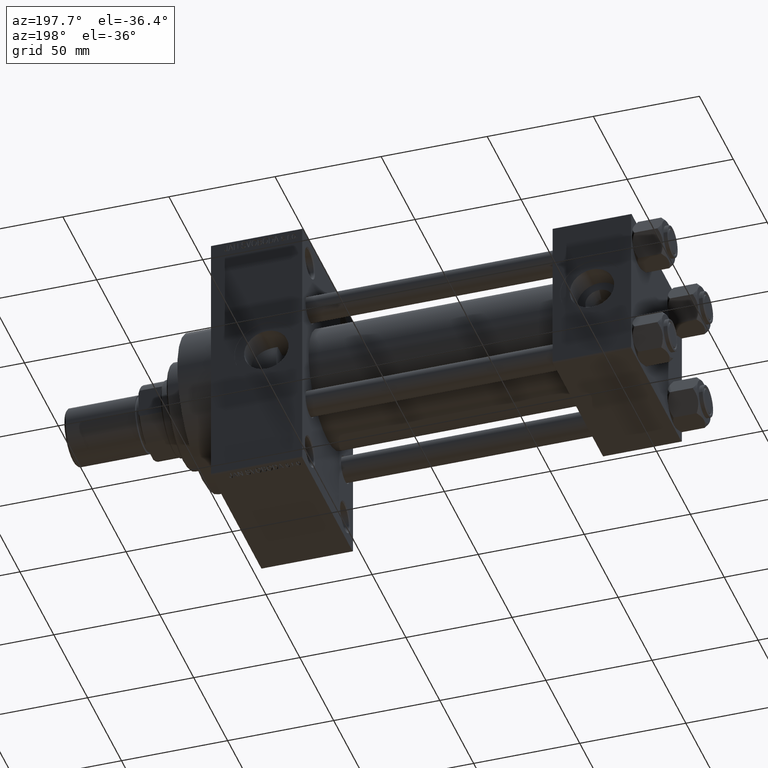
[diagram: clean part render]
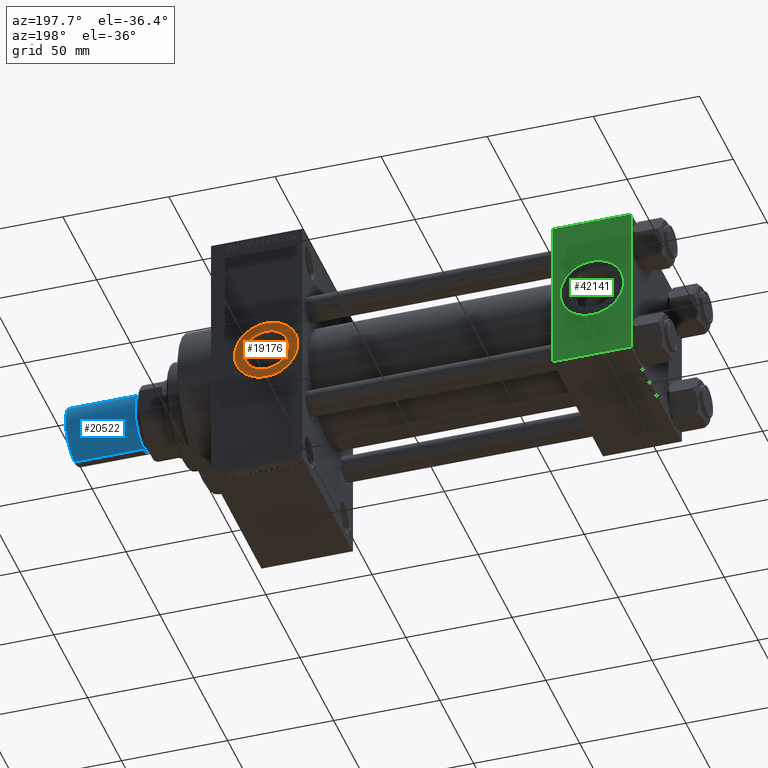
[diagram: same view with three faces highlighted in distinct colors, each labeled with its STEP entity id]
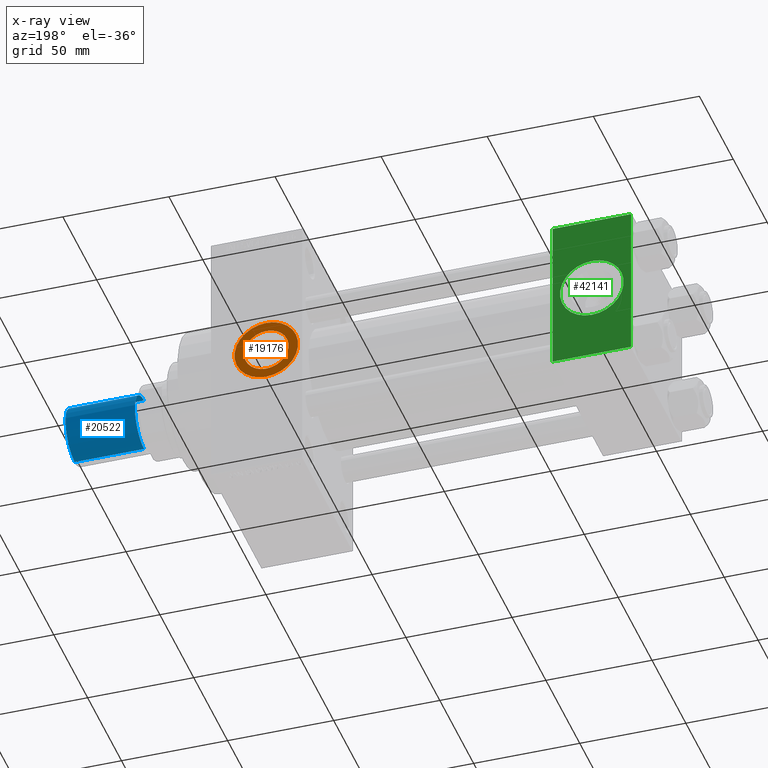
[diagram: x-ray of the same camera — body ghosted, the three highlighted faces saturated]
A machine part, auxiliary view with three faces highlighted in distinct colors.
The next image is the same camera in x-ray (body ghosted, the three faces saturated) — at least one of them is partly hidden behind the body in this view.
Their STEP definitions:

[orange] entity #19176 — the highlighted planar face has unit normal (0, 1, 0).
#1297 = ORIENTED_EDGE ( 'NONE', *, *, #29135, .F. ) ;
#2678 = ORIENTED_EDGE ( 'NONE', *, *, #4825, .T. ) ;
#4825 = EDGE_CURVE ( 'NONE', #10763, #16141, #16055, .T. ) ;
#8359 = CIRCLE ( 'NONE', #25208, 15.00000000000002487 ) ;
#10763 = VERTEX_POINT ( 'NONE', #29411 ) ;
#10847 = FACE_BOUND ( 'NONE', #24672, .T. ) ;
#11347 = PLANE ( 'NONE',  #32540 ) ;
#12062 = CIRCLE ( 'NONE', #40182, 10.47999999999998622 ) ;
#16055 = CIRCLE ( 'NONE', #44964, 15.00000000000002487 ) ;
#16141 = VERTEX_POINT ( 'NONE', #39707 ) ;
#16532 = CARTESIAN_POINT ( 'NONE',  ( 172.0000000000000000, 37.29999999999999005, -2.032879073410320814E-15 ) ) ;
#17409 = EDGE_CURVE ( 'NONE', #16141, #10763, #8359, .T. ) ;
#17528 = CARTESIAN_POINT ( 'NONE',  ( 172.0000000000000000, 37.29999999999999716, -2.032879073410320814E-15 ) ) ;
#18412 = DIRECTION ( 'NONE',  ( 0.000000000000000000, -0.000000000000000000, 1.000000000000000000 ) ) ;
#19176 = ADVANCED_FACE ( 'NONE', ( #10847, #22182 ), #11347, .T. ) ;
#19369 = DIRECTION ( 'NONE',  ( 0.000000000000000000, 1.000000000000000000, 0.000000000000000000 ) ) ;
#22027 = DIRECTION ( 'NONE',  ( 0.000000000000000000, 0.000000000000000000, 1.000000000000000000 ) ) ;
#22182 = FACE_OUTER_BOUND ( 'NONE', #25550, .T. ) ;
#23982 = VERTEX_POINT ( 'NONE', #49066 ) ;
#24578 = DIRECTION ( 'NONE',  ( 0.000000000000000000, 0.000000000000000000, 1.000000000000000000 ) ) ;
#24672 = EDGE_LOOP ( 'NONE', ( #33791, #1297 ) ) ;
#25208 = AXIS2_PLACEMENT_3D ( 'NONE', #17528, #29096, #22027 ) ;
#25550 = EDGE_LOOP ( 'NONE', ( #2678, #33739 ) ) ;
#29096 = DIRECTION ( 'NONE',  ( 0.000000000000000000, 1.000000000000000000, 0.000000000000000000 ) ) ;
#29135 = EDGE_CURVE ( 'NONE', #23982, #35501, #12062, .T. ) ;
#29411 = CARTESIAN_POINT ( 'NONE',  ( 172.0000000000000000, 37.29999999999999716, 15.00000000000002309 ) ) ;
#29493 = DIRECTION ( 'NONE',  ( 0.000000000000000000, 1.000000000000000000, 0.000000000000000000 ) ) ;
#30223 = CARTESIAN_POINT ( 'NONE',  ( 172.0000000000000000, 37.29999999999999716, -2.032879073410320814E-15 ) ) ;
#30896 = CIRCLE ( 'NONE', #36507, 10.47999999999998622 ) ;
#31559 = CARTESIAN_POINT ( 'NONE',  ( 172.0000000000000000, 37.29999999999999005, 10.47999999999998444 ) ) ;
#32540 = AXIS2_PLACEMENT_3D ( 'NONE', #30223, #29493, #18412 ) ;
#33739 = ORIENTED_EDGE ( 'NONE', *, *, #17409, .T. ) ;
#33791 = ORIENTED_EDGE ( 'NONE', *, *, #42560, .F. ) ;
#34533 = DIRECTION ( 'NONE',  ( 0.000000000000000000, 1.000000000000000000, 0.000000000000000000 ) ) ;
#35046 = DIRECTION ( 'NONE',  ( 0.000000000000000000, 0.000000000000000000, 1.000000000000000000 ) ) ;
#35458 = CARTESIAN_POINT ( 'NONE',  ( 172.0000000000000000, 37.29999999999999716, -2.032879073410320814E-15 ) ) ;
#35501 = VERTEX_POINT ( 'NONE', #31559 ) ;
#36507 = AXIS2_PLACEMENT_3D ( 'NONE', #46346, #34533, #35046 ) ;
#39226 = DIRECTION ( 'NONE',  ( 0.000000000000000000, 0.000000000000000000, 1.000000000000000000 ) ) ;
#39707 = CARTESIAN_POINT ( 'NONE',  ( 172.0000000000000000, 37.29999999999999716, -15.00000000000002665 ) ) ;
#40182 = AXIS2_PLACEMENT_3D ( 'NONE', #16532, #47700, #24578 ) ;
#42560 = EDGE_CURVE ( 'NONE', #35501, #23982, #30896, .T. ) ;
#44964 = AXIS2_PLACEMENT_3D ( 'NONE', #35458, #19369, #39226 ) ;
#46346 = CARTESIAN_POINT ( 'NONE',  ( 172.0000000000000000, 37.29999999999999005, -2.032879073410320814E-15 ) ) ;
#47700 = DIRECTION ( 'NONE',  ( 0.000000000000000000, 1.000000000000000000, 0.000000000000000000 ) ) ;
#49066 = CARTESIAN_POINT ( 'NONE',  ( 172.0000000000000000, 37.29999999999999005, -10.47999999999998799 ) ) ;

[blue] entity #20522 — the highlighted cylindrical surface (edge-blend (fillet) strip) has radius 13.5 mm, axis along (1, -0, -0).
#158 = EDGE_CURVE ( 'NONE', #36456, #22473, #22329, .T. ) ;
#1480 = DIRECTION ( 'NONE',  ( -0.000000000000000000, -0.000000000000000000, -1.000000000000000000 ) ) ;
#1986 = CARTESIAN_POINT ( 'NONE',  ( 13.50000000000000000, 1.653273178848926867E-15, 33.50000000000000000 ) ) ;
#2382 = ORIENTED_EDGE ( 'NONE', *, *, #27435, .T. ) ;
#3882 = CARTESIAN_POINT ( 'NONE',  ( -13.50000000000000000, 0.000000000000000000, 0.7999999999999951594 ) ) ;
#4117 = VERTEX_POINT ( 'NONE', #3882 ) ;
#5196 = CARTESIAN_POINT ( 'NONE',  ( 0.000000000000000000, 0.000000000000000000, 33.50000000000000000 ) ) ;
#6347 = CIRCLE ( 'NONE', #14390, 13.50000000000000000 ) ;
#7334 = VECTOR ( 'NONE', #47367, 1000.000000000000000 ) ;
#8386 = CARTESIAN_POINT ( 'NONE',  ( -13.50000000000000000, 0.000000000000000000, 33.50000000000000000 ) ) ;
#9031 = FACE_OUTER_BOUND ( 'NONE', #40920, .T. ) ;
#9059 = ORIENTED_EDGE ( 'NONE', *, *, #158, .T. ) ;
#9250 = EDGE_CURVE ( 'NONE', #36456, #15090, #31463, .T. ) ;
#11241 = DIRECTION ( 'NONE',  ( -0.000000000000000000, -0.000000000000000000, -1.000000000000000000 ) ) ;
#13552 = DIRECTION ( 'NONE',  ( -1.000000000000000000, 0.000000000000000000, 0.000000000000000000 ) ) ;
#14390 = AXIS2_PLACEMENT_3D ( 'NONE', #15544, #45710, #42707 ) ;
#15090 = VERTEX_POINT ( 'NONE', #47487 ) ;
#15544 = CARTESIAN_POINT ( 'NONE',  ( 0.000000000000000000, 0.000000000000000000, 0.7999999999999951594 ) ) ;
#15911 = VECTOR ( 'NONE', #11241, 1000.000000000000000 ) ;
#16213 = AXIS2_PLACEMENT_3D ( 'NONE', #5196, #45131, #33327 ) ;
#20522 = ADVANCED_FACE ( 'NONE', ( #9031 ), #29140, .T. ) ;
#22329 = LINE ( 'NONE', #37655, #15911 ) ;
#22473 = VERTEX_POINT ( 'NONE', #23030 ) ;
#23030 = CARTESIAN_POINT ( 'NONE',  ( 13.50000000000000000, 1.653273178848926867E-15, 0.7999999999999951594 ) ) ;
#24657 = AXIS2_PLACEMENT_3D ( 'NONE', #47510, #1480, #13552 ) ;
#27435 = EDGE_CURVE ( 'NONE', #22473, #4117, #6347, .T. ) ;
#29140 = CYLINDRICAL_SURFACE ( 'NONE', #24657, 13.50000000000000000 ) ;
#30561 = ORIENTED_EDGE ( 'NONE', *, *, #32113, .F. ) ;
#31463 = CIRCLE ( 'NONE', #16213, 13.50000000000000000 ) ;
#32113 = EDGE_CURVE ( 'NONE', #15090, #4117, #35304, .T. ) ;
#33327 = DIRECTION ( 'NONE',  ( 1.000000000000000000, 0.000000000000000000, 0.000000000000000000 ) ) ;
#35304 = LINE ( 'NONE', #8386, #7334 ) ;
#36456 = VERTEX_POINT ( 'NONE', #1986 ) ;
#37655 = CARTESIAN_POINT ( 'NONE',  ( 13.50000000000000000, 1.653273178848926867E-15, 33.50000000000000000 ) ) ;
#40920 = EDGE_LOOP ( 'NONE', ( #42508, #9059, #2382, #30561 ) ) ;
#42508 = ORIENTED_EDGE ( 'NONE', *, *, #9250, .F. ) ;
#42707 = DIRECTION ( 'NONE',  ( 1.000000000000000000, 0.000000000000000000, 0.000000000000000000 ) ) ;
#45131 = DIRECTION ( 'NONE',  ( 0.000000000000000000, 0.000000000000000000, 1.000000000000000000 ) ) ;
#45710 = DIRECTION ( 'NONE',  ( -0.000000000000000000, -0.000000000000000000, 1.000000000000000000 ) ) ;
#47367 = DIRECTION ( 'NONE',  ( -0.000000000000000000, -0.000000000000000000, -1.000000000000000000 ) ) ;
#47487 = CARTESIAN_POINT ( 'NONE',  ( -13.50000000000000000, 0.000000000000000000, 33.50000000000000000 ) ) ;
#47510 = CARTESIAN_POINT ( 'NONE',  ( 0.000000000000000000, 0.000000000000000000, 33.50000000000000000 ) ) ;

[green] entity #42141 — the highlighted planar face has unit normal (0, 1, 0).
#247 = CARTESIAN_POINT ( 'NONE',  ( 37.00000000000000000, 37.49999999999999289, -36.99999999999998579 ) ) ;
#773 = LINE ( 'NONE', #39256, #34080 ) ;
#1950 = LINE ( 'NONE', #13523, #36835 ) ;
#2245 = FACE_OUTER_BOUND ( 'NONE', #5562, .T. ) ;
#3243 = VERTEX_POINT ( 'NONE', #36082 ) ;
#3527 = LINE ( 'NONE', #247, #22528 ) ;
#4253 = CIRCLE ( 'NONE', #38792, 15.00000000000000178 ) ;
#4323 = EDGE_LOOP ( 'NONE', ( #48532, #42853 ) ) ;
#5447 = EDGE_CURVE ( 'NONE', #39073, #9009, #7344, .T. ) ;
#5562 = EDGE_LOOP ( 'NONE', ( #45786, #14552, #33365, #36044 ) ) ;
#5840 = DIRECTION ( 'NONE',  ( 0.000000000000000000, 1.000000000000000000, 0.000000000000000000 ) ) ;
#6499 = FACE_BOUND ( 'NONE', #4323, .T. ) ;
#6848 = EDGE_CURVE ( 'NONE', #9009, #3243, #3527, .T. ) ;
#6875 = VERTEX_POINT ( 'NONE', #15091 ) ;
#7344 = LINE ( 'NONE', #18435, #27355 ) ;
#9009 = VERTEX_POINT ( 'NONE', #40450 ) ;
#10603 = VERTEX_POINT ( 'NONE', #27698 ) ;
#13089 = CARTESIAN_POINT ( 'NONE',  ( 37.00000000000000000, 37.49999999999999289, 37.50000000000000000 ) ) ;
#13516 = CARTESIAN_POINT ( 'NONE',  ( 37.00000000000000000, 37.49999999999999289, 37.00000000000000000 ) ) ;
#13523 = CARTESIAN_POINT ( 'NONE',  ( 0.000000000000000000, 37.49999999999999289, 37.50000000000000000 ) ) ;
#13578 = DIRECTION ( 'NONE',  ( -0.000000000000000000, 1.000000000000000000, 0.000000000000000000 ) ) ;
#13679 = EDGE_CURVE ( 'NONE', #35045, #6875, #47607, .T. ) ;
#14063 = DIRECTION ( 'NONE',  ( 0.000000000000000000, -0.000000000000000000, 1.000000000000000000 ) ) ;
#14552 = ORIENTED_EDGE ( 'NONE', *, *, #6848, .T. ) ;
#15091 = CARTESIAN_POINT ( 'NONE',  ( 18.50000000000000000, 37.49999999999999289, 15.00000000000000178 ) ) ;
#15250 = EDGE_CURVE ( 'NONE', #6875, #35045, #4253, .T. ) ;
#16675 = DIRECTION ( 'NONE',  ( 0.000000000000000000, 0.000000000000000000, 1.000000000000000000 ) ) ;
#16871 = DIRECTION ( 'NONE',  ( 1.000000000000000000, 0.000000000000000000, 0.000000000000000000 ) ) ;
#18435 = CARTESIAN_POINT ( 'NONE',  ( 37.00000000000000000, 37.49999999999999289, 37.50000000000000000 ) ) ;
#18878 = DIRECTION ( 'NONE',  ( -1.000000000000000000, 0.000000000000000000, 0.000000000000000000 ) ) ;
#19269 = CARTESIAN_POINT ( 'NONE',  ( 18.50000000000000000, 37.49999999999999289, 0.000000000000000000 ) ) ;
#21888 = AXIS2_PLACEMENT_3D ( 'NONE', #44317, #5840, #16675 ) ;
#22401 = EDGE_CURVE ( 'NONE', #10603, #3243, #1950, .T. ) ;
#22528 = VECTOR ( 'NONE', #18878, 1000.000000000000000 ) ;
#27355 = VECTOR ( 'NONE', #38277, 1000.000000000000000 ) ;
#27698 = CARTESIAN_POINT ( 'NONE',  ( 0.000000000000000000, 37.49999999999999289, 37.00000000000000000 ) ) ;
#30033 = AXIS2_PLACEMENT_3D ( 'NONE', #13089, #13578, #14063 ) ;
#33365 = ORIENTED_EDGE ( 'NONE', *, *, #22401, .F. ) ;
#34080 = VECTOR ( 'NONE', #16871, 1000.000000000000000 ) ;
#34348 = DIRECTION ( 'NONE',  ( 0.000000000000000000, 0.000000000000000000, 1.000000000000000000 ) ) ;
#35045 = VERTEX_POINT ( 'NONE', #43732 ) ;
#36044 = ORIENTED_EDGE ( 'NONE', *, *, #42988, .T. ) ;
#36082 = CARTESIAN_POINT ( 'NONE',  ( 0.000000000000000000, 37.49999999999999289, -36.99999999999998579 ) ) ;
#36835 = VECTOR ( 'NONE', #45894, 1000.000000000000000 ) ;
#38277 = DIRECTION ( 'NONE',  ( 0.000000000000000000, 0.000000000000000000, -1.000000000000000000 ) ) ;
#38792 = AXIS2_PLACEMENT_3D ( 'NONE', #19269, #47368, #34348 ) ;
#39073 = VERTEX_POINT ( 'NONE', #13516 ) ;
#39256 = CARTESIAN_POINT ( 'NONE',  ( 37.00000000000000000, 37.49999999999999289, 37.00000000000000000 ) ) ;
#40450 = CARTESIAN_POINT ( 'NONE',  ( 37.00000000000000000, 37.49999999999999289, -36.99999999999998579 ) ) ;
#42141 = ADVANCED_FACE ( 'NONE', ( #6499, #2245 ), #47539, .T. ) ;
#42853 = ORIENTED_EDGE ( 'NONE', *, *, #13679, .F. ) ;
#42988 = EDGE_CURVE ( 'NONE', #10603, #39073, #773, .T. ) ;
#43732 = CARTESIAN_POINT ( 'NONE',  ( 18.50000000000000355, 37.49999999999999289, -15.00000000000000178 ) ) ;
#44317 = CARTESIAN_POINT ( 'NONE',  ( 18.50000000000000000, 37.49999999999999289, 0.000000000000000000 ) ) ;
#45786 = ORIENTED_EDGE ( 'NONE', *, *, #5447, .T. ) ;
#45894 = DIRECTION ( 'NONE',  ( 0.000000000000000000, 0.000000000000000000, -1.000000000000000000 ) ) ;
#47368 = DIRECTION ( 'NONE',  ( 0.000000000000000000, 1.000000000000000000, 0.000000000000000000 ) ) ;
#47539 = PLANE ( 'NONE',  #30033 ) ;
#47607 = CIRCLE ( 'NONE', #21888, 15.00000000000000178 ) ;
#48532 = ORIENTED_EDGE ( 'NONE', *, *, #15250, .F. ) ;